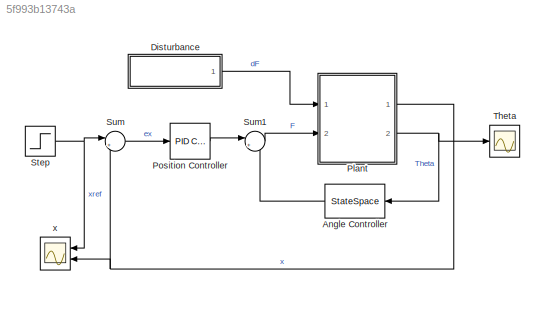
MODEL slx_5f993b13743a
KIND model
CONFIG AbsTol = auto
CONFIG EnableMultiTasking = on
CONFIG FixedStep = auto
CONFIG MaxStep = 1e-3
CONFIG MinStep = auto
CONFIG RelTol = 1e-3
CONFIG SampleTimeConstraint = Unconstrained
CONFIG Solver = ode45
CONFIG SolverName = ode45
CONFIG StartTime = 0.0
CONFIG StopTime = 12.00
WORKSPACE source: MATLAB code (in-file)
WORKSPACE mCart = 1
WORKSPACE mPend = 1
WORKSPACE g = 9.81
WORKSPACE L = 0.5
WORKSPACE theta0 = 0
WORKSPACE Kd = 10
BLOCK [StateSpace] Angle Controller
  A = [23.833328269455 126.450318024288;-11.9609227769319 -143.66013361564]
  B = [337.157386375115;-282.436791633897]
  C = [-98.8076786227021 -697.41095043166]
  D = -1595.47333883348
  Ports = [1, 1]
  X0 = 0
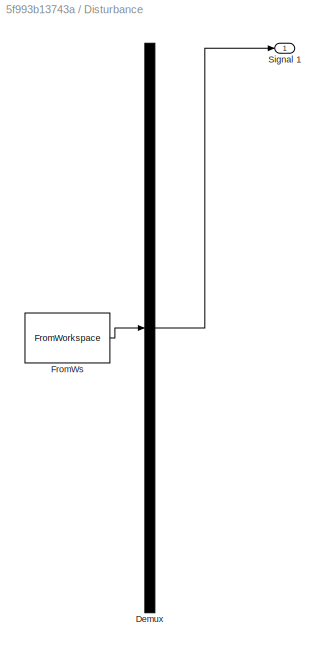
BLOCK [SubSystem] Disturbance
  ClipboardFcn = sigbuilder_block('clipboard');
  CloseFcn = sigbuilder_block('close');
  ContinueFcn = sigbuilder_block('continue');
  CopyFcn = sigbuilder_block('copy');
  DeleteFcn = sigbuilder_block('delete');
  LoadFcn = sigbuilder_block('load');
  MaskHideContents = on
  ModelCloseFcn = sigbuilder_block('modelClose');
  NameChangeFcn = sigbuilder_block('namechange');
  OpenFcn = sigbuilder_block('open',[402.828 199.862 551.172 395.379 ]);
  PauseFcn = sigbuilder_block('pause');
  Ports = [0, 1]
  PreSaveFcn = sigbuilder_block('preSave');
  RequestExecContextInheritance = off
  StartFcn = sigbuilder_block('start');
  StopFcn = sigbuilder_block('stop');
  Tag = STV Subsys
  Variant = off
BLOCK [Demux] Disturbance/Demux
  Outputs = 1
  Ports = [1, 1]
  Tag = STV Demux
BLOCK [FromWorkspace] Disturbance/FromWs
  SampleTime = 0
  Tag = STV FromWs
  VariableName = tuvar
  ZeroCross = on
BLOCK [Outport] Disturbance/Signal 1
  IconDisplay = Port number
  Tag = STV Outport
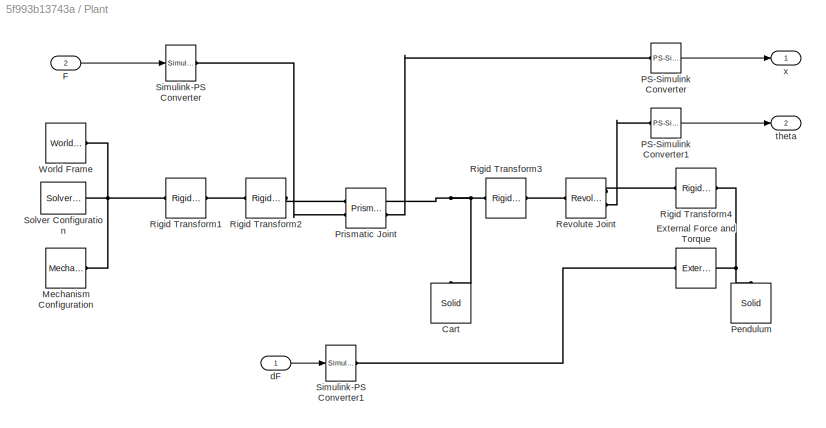
BLOCK [SubSystem] Plant
  Ports = [2, 2]
  RequestExecContextInheritance = off
  Variant = off
BLOCK [Reference] Plant/Cart  REF=sm_lib/Body Elements/Solid
  Ports = [0, 0, 0, 0, 0, 0, 1]
  SourceBlock = sm_lib/Body Elements/Solid
  SourceProductBaseCode = MS
  SourceProductName = Simscape Multibody
  SourceType = Solid
BLOCK [Reference] Plant/External Force and Torque  REF=sm_lib/Forces and
Torques/External Force
and Torque
  Ports = [0, 0, 0, 0, 0, 1, 1]
  SourceBlock = sm_lib/Forces and\nTorques/External Force\nand Torque
  SourceProductBaseCode = MS
  SourceProductName = Simscape Multibody
  SourceType = External Force\nand Torque
BLOCK [Inport] Plant/F
  IconDisplay = Port number
  Port = 2
BLOCK [Reference] Plant/Mechanism Configuration  REF=sm_lib/Utilities/Mechanism
Configuration
  Ports = [0, 0, 0, 0, 0, 0, 1]
  SourceBlock = sm_lib/Utilities/Mechanism\nConfiguration
  SourceProductBaseCode = MS
  SourceProductName = Simscape Multibody
  SourceType = Mechanism\nConfiguration
BLOCK [Reference] Plant/PS-Simulink Converter  REF=nesl_utility/PS-Simulink
Converter
  Ports = [0, 1, 0, 0, 0, 1]
  SourceBlock = nesl_utility/PS-Simulink\nConverter
  SourceProductBaseCode = SS
  SourceProductName = Simscape
  SourceType = PS-Simulink\nConverter
BLOCK [Reference] Plant/PS-Simulink Converter1  REF=nesl_utility/PS-Simulink
Converter
  Ports = [0, 1, 0, 0, 0, 1]
  SourceBlock = nesl_utility/PS-Simulink\nConverter
  SourceProductBaseCode = SS
  SourceProductName = Simscape
  SourceType = PS-Simulink\nConverter
BLOCK [Reference] Plant/Pendulum  REF=sm_lib/Body Elements/Solid
  Ports = [0, 0, 0, 0, 0, 0, 1]
  SourceBlock = sm_lib/Body Elements/Solid
  SourceProductBaseCode = MS
  SourceProductName = Simscape Multibody
  SourceType = Solid
BLOCK [Reference] Plant/Prismatic Joint  REF=sm_lib/Joints/Prismatic
Joint
  Ports = [0, 0, 0, 0, 0, 2, 2]
  SourceBlock = sm_lib/Joints/Prismatic\nJoint
  SourceProductBaseCode = MS
  SourceProductName = Simscape Multibody
  SourceType = Prismatic\nJoint
BLOCK [Reference] Plant/Revolute Joint  REF=sm_lib/Joints/Revolute Joint
  Ports = [0, 0, 0, 0, 0, 1, 2]
  SourceBlock = sm_lib/Joints/Revolute Joint
  SourceProductBaseCode = MS
  SourceProductName = Simscape Multibody
  SourceType = Revolute Joint
BLOCK [Reference] Plant/Rigid Transform1  REF=sm_lib/Frames and
Transforms/Rigid
Transform
  Ports = [0, 0, 0, 0, 0, 1, 1]
  SourceBlock = sm_lib/Frames and\nTransforms/Rigid\nTransform
  SourceProductBaseCode = MS
  SourceProductName = Simscape Multibody
  SourceType = Rigid\nTransform
BLOCK [Reference] Plant/Rigid Transform2  REF=sm_lib/Frames and
Transforms/Rigid
Transform
  Ports = [0, 0, 0, 0, 0, 1, 1]
  SourceBlock = sm_lib/Frames and\nTransforms/Rigid\nTransform
  SourceProductBaseCode = MS
  SourceProductName = Simscape Multibody
  SourceType = Rigid\nTransform
BLOCK [Reference] Plant/Rigid Transform3  REF=sm_lib/Frames and
Transforms/Rigid
Transform
  Ports = [0, 0, 0, 0, 0, 1, 1]
  SourceBlock = sm_lib/Frames and\nTransforms/Rigid\nTransform
  SourceProductBaseCode = MS
  SourceProductName = Simscape Multibody
  SourceType = Rigid\nTransform
BLOCK [Reference] Plant/Rigid Transform4  REF=sm_lib/Frames and
Transforms/Rigid
Transform
  Ports = [0, 0, 0, 0, 0, 1, 1]
  SourceBlock = sm_lib/Frames and\nTransforms/Rigid\nTransform
  SourceProductBaseCode = MS
  SourceProductName = Simscape Multibody
  SourceType = Rigid\nTransform
BLOCK [Reference] Plant/Simulink-PS Converter  REF=nesl_utility/Simulink-PS
Converter
  Ports = [1, 0, 0, 0, 0, 0, 1]
  SourceBlock = nesl_utility/Simulink-PS\nConverter
  SourceProductBaseCode = SS
  SourceProductName = Simscape
  SourceType = Simulink-PS\nConverter
BLOCK [Reference] Plant/Simulink-PS Converter1  REF=nesl_utility/Simulink-PS
Converter
  Ports = [1, 0, 0, 0, 0, 0, 1]
  SourceBlock = nesl_utility/Simulink-PS\nConverter
  SourceProductBaseCode = SS
  SourceProductName = Simscape
  SourceType = Simulink-PS\nConverter
BLOCK [Reference] Plant/Solver Configuration  REF=nesl_utility/Solver
Configuration
  Ports = [0, 0, 0, 0, 0, 0, 1]
  SourceBlock = nesl_utility/Solver\nConfiguration
  SourceProductBaseCode = SS
  SourceProductName = Simscape
  SourceType = Solver\nConfiguration
BLOCK [Reference] Plant/World Frame  REF=sm_lib/Frames and
Transforms/World Frame
  Ports = [0, 0, 0, 0, 0, 0, 1]
  SourceBlock = sm_lib/Frames and\nTransforms/World Frame
  SourceProductBaseCode = MS
  SourceProductName = Simscape Multibody
  SourceType = World Frame
BLOCK [Inport] Plant/dF
  IconDisplay = Port number
BLOCK [Outport] Plant/theta
  IconDisplay = Port number
  Port = 2
BLOCK [Outport] Plant/x
  IconDisplay = Port number
BLOCK [Reference] Position Controller  REF=simulink/Continuous/PID Controller
  Ports = [1, 1]
  SourceBlock = simulink/Continuous/PID Controller
  SourceProductBaseCode = SL
  SourceProductName = Simulink
  SourceType = PID 1dof
BLOCK [Step] Step
  SampleTime = 0
BLOCK [Sum] Sum
  IconShape = round
  InputSameDT = off
  Inputs = |+-
  OutDataTypeStr = Inherit: Inherit via internal rule
  Ports = [2, 1]
  SaturateOnIntegerOverflow = off
BLOCK [Sum] Sum1
  IconShape = round
  InputSameDT = off
  Inputs = |++
  OutDataTypeStr = Inherit: Inherit via internal rule
  Ports = [2, 1]
  SaturateOnIntegerOverflow = off
BLOCK [Scope] Theta
  NumInputPorts = 1
  Ports = [1]
  ScopeSpecificationString = Simulink.scopes.TimeScopeBlockCfg('CurrentConfiguration', extmgr.ConfigurationSet(extmgr.Configuration('Core','General UI',true,'ShowNewAction',false,'ShowLoadConfigSet',false,'ShowSaveConfigSet',false,'DisplayFullSourceName',false,'MessageLogAutoOpenMode','for warn/fail messages','MessageLogDialogPosition',[20 520 450 500],'ShowMainToolbar',true,'ShowPlaybackToolbar',false,'ShowStatusbar',true,'S...<+3027ch>
BLOCK [Scope] x
  NumInputPorts = 2
  Ports = [2]
  ScopeSpecificationString = Simulink.scopes.TimeScopeBlockCfg('CurrentConfiguration', extmgr.ConfigurationSet(extmgr.Configuration('Core','General UI',true,'ShowNewAction',false,'ShowLoadConfigSet',false,'ShowSaveConfigSet',false,'DisplayFullSourceName',false,'MessageLogAutoOpenMode','for warn/fail messages','MessageLogDialogPosition',[20 520 450 500],'ShowMainToolbar',true,'ShowPlaybackToolbar',false,'ShowStatusbar',true,'S...<+3713ch>
LINE Angle Controller:1 -> Sum1:2
LINE Disturbance:1 -> Plant:1
LINE Plant/F:1 -> Plant/Simulink-PS Converter:1
LINE Plant/PS-Simulink Converter1:1 -> Plant/theta:1
LINE Plant/PS-Simulink Converter:1 -> Plant/x:1
LINE Plant/dF:1 -> Plant/Simulink-PS Converter1:1
NET Plant:1 -> Sum:2, x:2
NET Plant:2 -> Angle Controller:1, Theta:1
LINE Position Controller:1 -> Sum1:1
NET Step:1 -> Sum:1, x:1
LINE Sum1:1 -> Plant:2
LINE Sum:1 -> Position Controller:1
PNET net1: Plant/Cart:RConn1 -- Plant/Prismatic Joint:RConn1 -- Plant/Rigid Transform3:LConn1
PLINE Plant/External Force and Torque:LConn1 -- Plant/Simulink-PS Converter1:RConn1
PNET net2: Plant/External Force and Torque:RConn1 -- Plant/Pendulum:RConn1 -- Plant/Rigid Transform4:RConn1
PNET net3: Plant/Mechanism Configuration:RConn1 -- Plant/Rigid Transform1:LConn1 -- Plant/Solver Configuration:RConn1 -- Plant/World Frame:RConn1
PLINE Plant/PS-Simulink Converter1:LConn1 -- Plant/Revolute Joint:RConn2
PLINE Plant/PS-Simulink Converter:LConn1 -- Plant/Prismatic Joint:RConn2
PLINE Plant/Prismatic Joint:LConn1 -- Plant/Rigid Transform2:RConn1
PLINE Plant/Prismatic Joint:LConn2 -- Plant/Simulink-PS Converter:RConn1
PLINE Plant/Revolute Joint:LConn1 -- Plant/Rigid Transform3:RConn1
PLINE Plant/Revolute Joint:RConn1 -- Plant/Rigid Transform4:LConn1
PLINE Plant/Rigid Transform1:RConn1 -- Plant/Rigid Transform2:LConn1
note: NET lines group one-source signal fan-out (src -> all destinations, sorted); 1:1 wires keep LINE; PNET lines group multi-terminal physical nets as a canonical sorted terminal list (undirected conserving connections); 2-terminal nets keep the pairwise PLINE form
